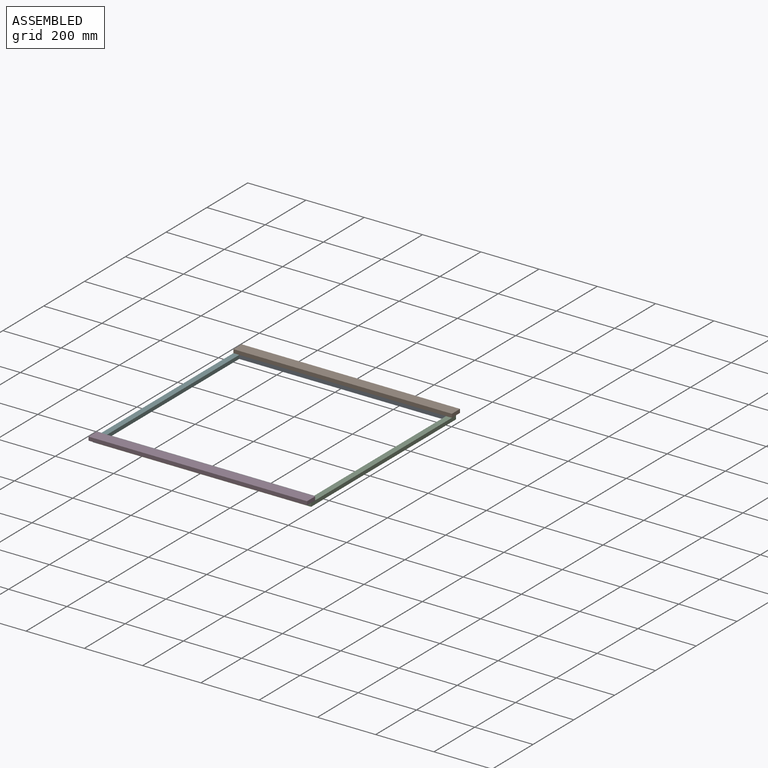
[diagram: assembled view]
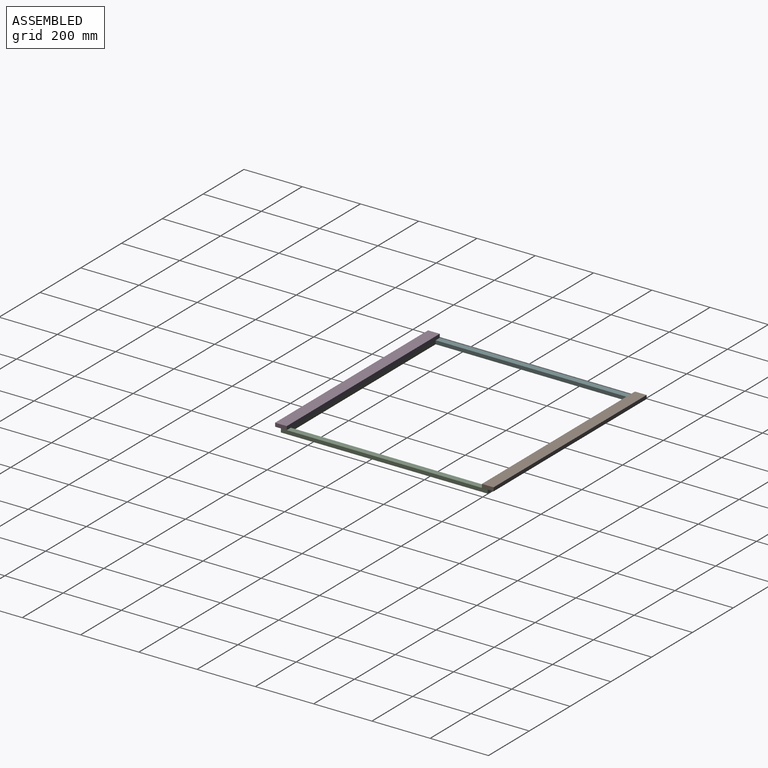
[diagram: assembled view, second angle]
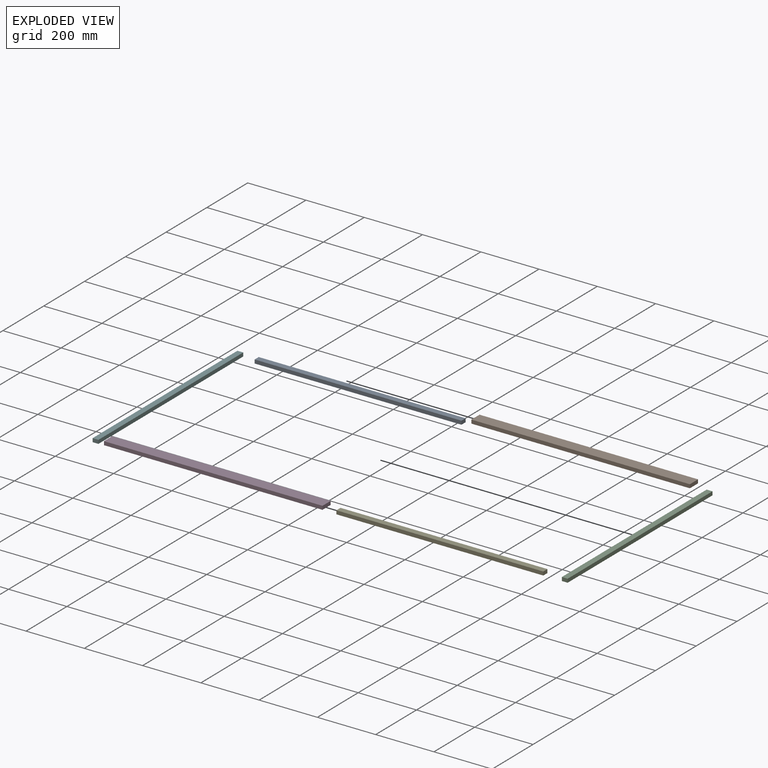
[diagram: exploded view]
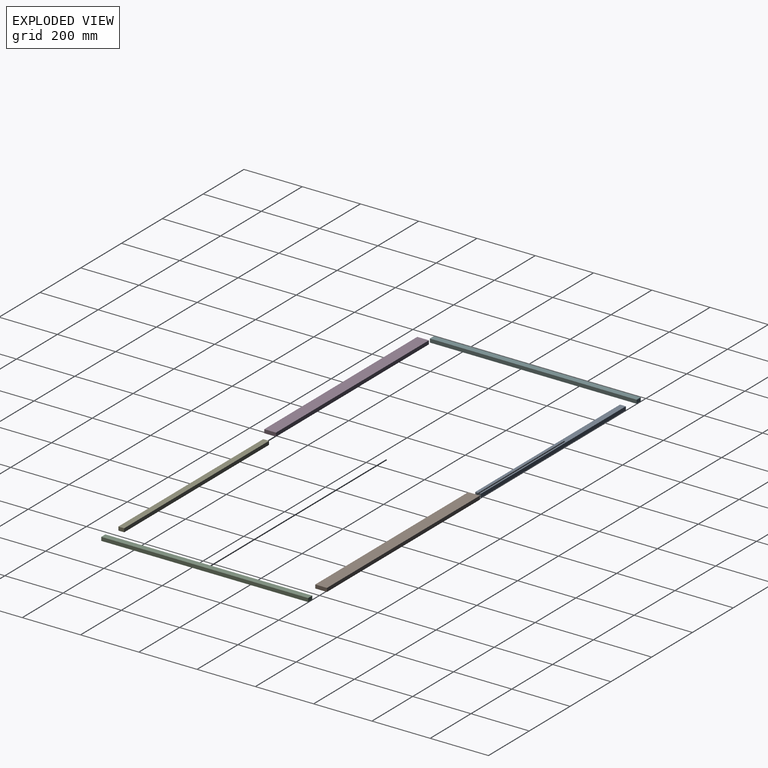
[diagram: exploded view, second angle]
ASSEMBLY  parts=6 mates=5
PART A: 6 faces, bbox 20x710x12.5 mm
  f0: plane 710x12.5mm, normal (-1,0,0), area 8875mm2, adj f1,f3,f4,f5
  f1: plane 20x12.5mm, normal (0,-1,0), area 250mm2, adj f0,f2,f4,f5
  f2: plane 710x12.5mm, normal (1,0,0), area 8875mm2, adj f1,f3,f4,f5
  f3: plane 20x12.5mm, normal (0,1,0), area 250mm2, adj f0,f2,f4,f5
  f4: plane 710x20mm, normal (0,0,1), area 14200mm2, adj f0,f1,f2,f3
  f5: plane 710x20mm, normal (0,0,-1), area 14200mm2, adj f0,f1,f2,f3
PART B: 6 faces, bbox 40x750x12.5 mm
  f0: plane 750x12.5mm, normal (-1,0,0), area 9375mm2, adj f1,f3,f4,f5
  f1: plane 40x12.5mm, normal (0,-1,0), area 500mm2, adj f0,f2,f4,f5
  f2: plane 750x12.5mm, normal (1,0,0), area 9375mm2, adj f1,f3,f4,f5
  f3: plane 40x12.5mm, normal (0,1,0), area 500mm2, adj f0,f2,f4,f5
  f4: plane 750x40mm, normal (0,0,1), area 30000mm2, adj f0,f1,f2,f3
  f5: plane 750x40mm, normal (0,0,-1), area 30000mm2, adj f0,f1,f2,f3
PART C: same geometry as A
PART D: same geometry as B
PART E: same geometry as A
PART F: same geometry as A
PLACE A rot(axis=(0,0,-1),90deg) t=(-193.03,-156.15,-165.85)mm
PLACE B rot(axis=(0,0,1),90deg) t=(-173.03,-176.15,-153.35)mm
PLACE C t=(556.97,-156.15,-165.85)mm
PLACE D rot(axis=(0,0,-1),90deg) t=(-173.03,-96.15,-153.35)mm
PLACE E rot(axis=(0,0,1),90deg) t=(-153.03,-116.15,-165.85)mm
PLACE F t=(-173.03,-156.15,-165.85)mm
MATE fastened E.f1 <-> C.f0  axis (1,0,0) through (181.97,-491.15,-165.85)mm
MATE fastened B.f3 <-> F.f0  axis (-1,0,0) through (-548.03,218.85,-153.35)mm
MATE fastened D.f1 <-> F.f0  axis (-1,0,0) through (-548.03,-491.15,-153.35)mm
MATE fastened A.f3 <-> C.f0  axis (1,0,0) through (181.97,218.85,-165.85)mm
MATE fastened A.f1 <-> F.f2  axis (-1,0,0) through (-528.03,218.85,-165.85)mm
